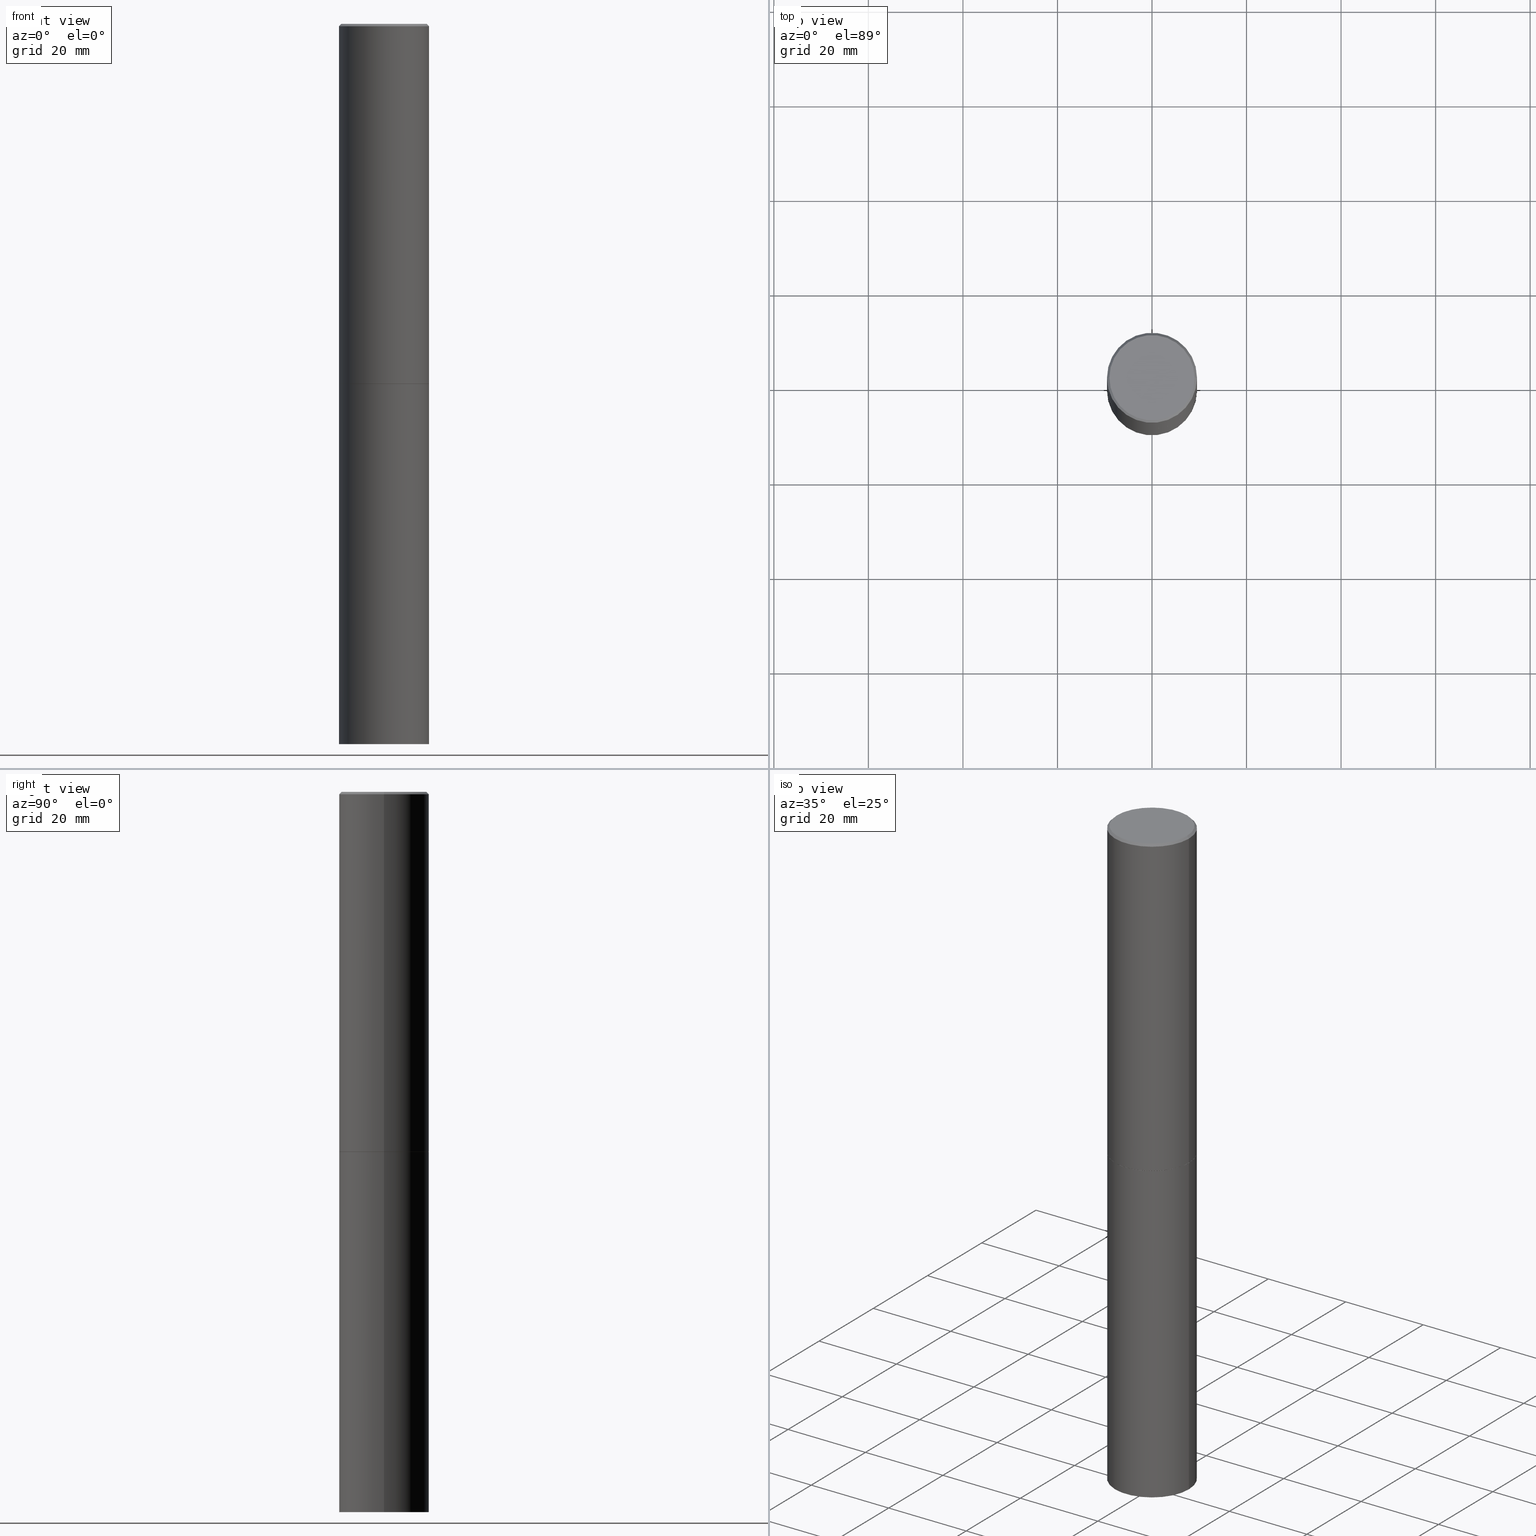
[diagram: canonical four-view strip — front | top / right | iso, engineering-drawing reading convention]
A machine part, canonical four-view strip (front | top / right | iso — engineering-drawing reading convention). The complete STEP part file that produces these views, byte-faithful:
ISO-10303-21;
HEADER;
FILE_DESCRIPTION (( 'STEP AP203' ),
    '1' );
FILE_NAME ('31956.STEP',
    '2024-02-27T14:23:42',
    ( '' ),
    ( '' ),
    'SwSTEP 2.0',
    'SolidWorks 2023',
    '' );
FILE_SCHEMA (( 'CONFIG_CONTROL_DESIGN' ));
ENDSEC;

DATA;
#1 = ORIENTED_EDGE ( 'NONE', *, *, #360, .T. ) ;
#2 = PRODUCT_DEFINITION_FORMATION_WITH_SPECIFIED_SOURCE ( 'ANY', '', #34, .NOT_KNOWN. ) ;
#3 = CC_DESIGN_APPROVAL ( #133, ( #362 ) ) ;
#4 = APPROVAL_ROLE ( '' ) ;
#5 = EDGE_LOOP ( 'NONE', ( #209, #112, #218, #188 ) ) ;
#6 = LINE ( 'NONE', #199, #73 ) ;
#7 = VERTEX_POINT ( 'NONE', #70 ) ;
#8 = VECTOR ( 'NONE', #314, 39.37007874015748143 ) ;
#9 = DIRECTION ( 'NONE',  ( -2.445468806185136597E-29, 3.491481338843145583E-15, 1.000000000000000000 ) ) ;
#10 = DIRECTION ( 'NONE',  ( 0.000000000000000000, 0.000000000000000000, 1.000000000000000000 ) ) ;
#11 = DIRECTION ( 'NONE',  ( -2.438088387897960049E-29, 3.491481338843145188E-15, 1.000000000000000000 ) ) ;
#12 = CARTESIAN_POINT ( 'NONE',  ( 4.890937612370294178E-31, -6.982962677686321191E-17, -0.02000000000000008715 ) ) ;
#13 = CARTESIAN_POINT ( 'NONE',  ( 7.336406418555409790E-29, -1.047444401652943635E-14, -3.000000000000000444 ) ) ;
#14 = DIRECTION ( 'NONE',  ( -1.000000000000000000, 6.982962677686265922E-15, -4.876176775795935793E-29 ) ) ;
#15 = DIRECTION ( 'NONE',  ( -2.445468806185136597E-29, 3.491481338843145583E-15, 1.000000000000000000 ) ) ;
#16 = CARTESIAN_POINT ( 'NONE',  ( 2.618611004132423381E-15, 0.3749999999999895639, -3.000000000000000888 ) ) ;
#17 = AXIS2_PLACEMENT_3D ( 'NONE', #151, #266, #178 ) ;
#18 = CONICAL_SURFACE ( 'NONE', #231, 0.3749999999999996669, 0.7853981633974457255 ) ;
#19 = EDGE_CURVE ( 'NONE', #366, #30, #25, .T. ) ;
#20 = CARTESIAN_POINT ( 'NONE',  ( 0.3750000000000000555, -2.356749903719122272E-14, -6.000000000000000888 ) ) ;
#21 = LINE ( 'NONE', #85, #26 ) ;
#22 = ORIENTED_EDGE ( 'NONE', *, *, #360, .F. ) ;
#23 = CARTESIAN_POINT ( 'NONE',  ( 7.336406418555409790E-29, -1.047444401652943635E-14, -3.000000000000000444 ) ) ;
#24 = SECURITY_CLASSIFICATION_LEVEL ( 'unclassified' ) ;
#25 = CIRCLE ( 'NONE', #60, 0.3750000000000000555 ) ;
#26 = VECTOR ( 'NONE', #306, 39.37007874015748143 ) ;
#27 = ORIENTED_EDGE ( 'NONE', *, *, #292, .F. ) ;
#28 = CC_DESIGN_APPROVAL ( #300, ( #2 ) ) ;
#29 = ADVANCED_FACE ( 'NONE', ( #291 ), #208, .F. ) ;
#30 = VERTEX_POINT ( 'NONE', #39 ) ;
#31 = CARTESIAN_POINT ( 'NONE',  ( 7.333960949749226429E-29, -1.047095253519059492E-14, -2.999000000000000554 ) ) ;
#32 = ORIENTED_EDGE ( 'NONE', *, *, #241, .T. ) ;
#33 = AXIS2_PLACEMENT_3D ( 'NONE', #31, #221, #186 ) ;
#34 = PRODUCT ( '31956', '31956', '', ( #256 ) ) ;
#35 = ORIENTED_EDGE ( 'NONE', *, *, #174, .F. ) ;
#36 = EDGE_LOOP ( 'NONE', ( #35, #54, #330, #347 ) ) ;
#37 = ORIENTED_EDGE ( 'NONE', *, *, #292, .T. ) ;
#38 = AXIS2_PLACEMENT_3D ( 'NONE', #43, #15, #131 ) ;
#39 = CARTESIAN_POINT ( 'NONE',  ( -0.3750000000000000555, -1.304713076569377962E-14, -6.000000000000000888 ) ) ;
#40 = EDGE_CURVE ( 'NONE', #220, #56, #6, .T. ) ;
#41 = EDGE_LOOP ( 'NONE', ( #340, #61, #58, #196 ) ) ;
#42 = AXIS2_PLACEMENT_3D ( 'NONE', #260, #94, #171 ) ;
#43 = CARTESIAN_POINT ( 'NONE',  ( 7.336406418555409790E-29, -1.047444401652943635E-14, -3.000000000000000444 ) ) ;
#44 = CARTESIAN_POINT ( 'NONE',  ( 7.336406418555409790E-29, -1.047444401652943635E-14, -3.000000000000000444 ) ) ;
#45 = MANIFOLD_SOLID_BREP ( 'Body-Move/Copy2[1]', #108 ) ;
#46 = DIRECTION ( 'NONE',  ( 1.000000000000000000, -6.982962677686265922E-15, 4.876176775795935793E-29 ) ) ;
#47 = CARTESIAN_POINT ( 'NONE',  ( 0.3749999999999998335, -2.618611004132348439E-15, 1.828566290923475082E-29 ) ) ;
#48 = AXIS2_PLACEMENT_3D ( 'NONE', #52, #113, #136 ) ;
#49 = ADVANCED_BREP_SHAPE_REPRESENTATION ( '31956', ( #45, #168, #296 ), #128 ) ;
#50 = ADVANCED_FACE ( 'NONE', ( #294 ), #295, .T. ) ;
#51 = APPROVAL_STATUS ( 'not_yet_approved' ) ;
#52 = CARTESIAN_POINT ( 'NONE',  ( 0.000000000000000000, 0.000000000000000000, 0.000000000000000000 ) ) ;
#53 = PERSON_AND_ORGANIZATION ( #190, #169 ) ;
#54 = ORIENTED_EDGE ( 'NONE', *, *, #328, .T. ) ;
#55 = CIRCLE ( 'NONE', #264, 0.3750000000000000555 ) ;
#56 = VERTEX_POINT ( 'NONE', #124 ) ;
#57 = CARTESIAN_POINT ( 'NONE',  ( 7.333960949749226429E-29, -1.047095253519059492E-14, -2.999000000000000554 ) ) ;
#58 = ORIENTED_EDGE ( 'NONE', *, *, #312, .F. ) ;
#59 =( NAMED_UNIT ( * ) SI_UNIT ( $, .STERADIAN. ) SOLID_ANGLE_UNIT ( ) );
#60 = AXIS2_PLACEMENT_3D ( 'NONE', #332, #204, #66 ) ;
#61 = ORIENTED_EDGE ( 'NONE', *, *, #174, .T. ) ;
#62 = ADVANCED_FACE ( 'NONE', ( #299 ), #236, .T. ) ;
#63 = DIRECTION ( 'NONE',  ( 1.000000000000000000, -6.982962677686266711E-15, 0.000000000000000000 ) ) ;
#64 = UNCERTAINTY_MEASURE_WITH_UNIT (LENGTH_MEASURE( 1.000000000000000082E-05 ), #344, 'distance_accuracy_value', 'NONE');
#65 = DIRECTION ( 'NONE',  ( -1.000000000000000000, 6.982962677686265922E-15, -4.876176775795935793E-29 ) ) ;
#66 = DIRECTION ( 'NONE',  ( 1.000000000000000000, -6.982962677686261189E-15, 0.000000000000000000 ) ) ;
#67 = DIRECTION ( 'NONE',  ( -0.7071067811865456854, 2.468850131082237733E-15, -0.7071067811865493491 ) ) ;
#68 = AXIS2_PLACEMENT_3D ( 'NONE', #44, #69, #150 ) ;
#69 = DIRECTION ( 'NONE',  ( -2.445468806185136597E-29, 3.491481338843145583E-15, 1.000000000000000000 ) ) ;
#70 = CARTESIAN_POINT ( 'NONE',  ( -0.3750000000000000555, -1.304713076569377962E-14, -3.000000000000000444 ) ) ;
#71 = DIRECTION ( 'NONE',  ( -1.000000000000000000, 6.982962677686266711E-15, 0.000000000000000000 ) ) ;
#72 = CYLINDRICAL_SURFACE ( 'NONE', #327, 0.3750000000000000555 ) ;
#73 = VECTOR ( 'NONE', #144, 39.37007874015748143 ) ;
#74 = CIRCLE ( 'NONE', #33, 0.3750000000000000555 ) ;
#75 = APPROVAL_PERSON_ORGANIZATION ( #237, #133, #205 ) ;
#76 = LINE ( 'NONE', #104, #356 ) ;
#77 = PRODUCT_DEFINITION ( 'UNKNOWN', '', #2, #229 ) ;
#78 = DIRECTION ( 'NONE',  ( 1.000000000000000000, -6.982962677686265922E-15, 4.876231632511992107E-29 ) ) ;
#79 = CARTESIAN_POINT ( 'NONE',  ( -2.087702828670439639E-46, 2.980686340760894400E-32, 8.537024980200822558E-18 ) ) ;
#80 = EDGE_CURVE ( 'NONE', #317, #7, #225, .T. ) ;
#81 = DIRECTION ( 'NONE',  ( -0.7071067811866199593, 7.493145998870616062E-15, 0.7071067811864750752 ) ) ;
#82 = DIRECTION ( 'NONE',  ( -2.445468806185136877E-29, 3.491481338843145188E-15, 1.000000000000000000 ) ) ;
#83 = CONICAL_SURFACE ( 'NONE', #258, 0.3749999999999996669, 0.7853981633974457255 ) ;
#84 = ORIENTED_EDGE ( 'NONE', *, *, #304, .T. ) ;
#85 = CARTESIAN_POINT ( 'NONE',  ( 0.3749999999999996669, -2.642516375941185662E-15, -0.02000000000000008715 ) ) ;
#86 = ORIENTED_EDGE ( 'NONE', *, *, #302, .T. ) ;
#87 = CARTESIAN_POINT ( 'NONE',  ( 4.890937612370294178E-31, -6.982962677686321191E-17, -0.02000000000000008715 ) ) ;
#88 = PERSON_AND_ORGANIZATION ( #190, #169 ) ;
#89 = ORIENTED_EDGE ( 'NONE', *, *, #241, .F. ) ;
#90 = ORIENTED_EDGE ( 'NONE', *, *, #80, .T. ) ;
#91 = LENGTH_MEASURE_WITH_UNIT ( LENGTH_MEASURE( 0.02539999999999999897 ), #277 );
#92 = PERSON_AND_ORGANIZATION_ROLE ( 'creator' ) ;
#93 = EDGE_LOOP ( 'NONE', ( #293, #173 ) ) ;
#94 = DIRECTION ( 'NONE',  ( -2.445468806185136597E-29, 3.491481338843145583E-15, 1.000000000000000000 ) ) ;
#95 = EDGE_LOOP ( 'NONE', ( #239, #114, #177, #254 ) ) ;
#96 = DIRECTION ( 'NONE',  ( -2.445468806185136597E-29, 3.491481338843145583E-15, 1.000000000000000000 ) ) ;
#97 = VERTEX_POINT ( 'NONE', #235 ) ;
#98 = CIRCLE ( 'NONE', #207, 0.3749999999999996669 ) ;
#99 = CARTESIAN_POINT ( 'NONE',  ( 0.3750000000000000555, -2.618611004132350016E-15, 1.828566290923476203E-29 ) ) ;
#100 = DIRECTION ( 'NONE',  ( 1.000000000000000000, -6.982962677686265922E-15, 4.876176775795935793E-29 ) ) ;
#101 = CIRCLE ( 'NONE', #289, 0.3750000000000000555 ) ;
#102 = DIRECTION ( 'NONE',  ( -2.445468806185136597E-29, 3.491481338843145583E-15, 1.000000000000000000 ) ) ;
#103 = APPROVAL ( #259, 'UNSPECIFIED' ) ;
#104 = CARTESIAN_POINT ( 'NONE',  ( -0.3750000000000000555, 2.664535259100376091E-15, -1.844600658845589598E-29 ) ) ;
#105 = PRODUCT_DEFINITION_SHAPE ( 'NONE', 'NONE',  #77 ) ;
#106 = EDGE_CURVE ( 'NONE', #97, #228, #232, .T. ) ;
#107 = LINE ( 'NONE', #110, #8 ) ;
#108 = CLOSED_SHELL ( 'NONE', ( #62, #285, #179, #155 ) ) ;
#109 = AXIS2_PLACEMENT_3D ( 'NONE', #305, #301, #100 ) ;
#110 = CARTESIAN_POINT ( 'NONE',  ( -0.3749999999999998335, 2.664535259100374514E-15, -1.844600658845588757E-29 ) ) ;
#111 = CALENDAR_DATE ( 2024, 27, 2 ) ;
#112 = ORIENTED_EDGE ( 'NONE', *, *, #341, .T. ) ;
#113 = DIRECTION ( 'NONE',  ( -2.445468806185136597E-29, 3.491481338843145583E-15, 1.000000000000000000 ) ) ;
#114 = ORIENTED_EDGE ( 'NONE', *, *, #193, .T. ) ;
#115 = AXIS2_PLACEMENT_3D ( 'NONE', #268, #354, #233 ) ;
#116 = VECTOR ( 'NONE', #348, 39.37007874015748143 ) ;
#117 = PRODUCT_RELATED_PRODUCT_CATEGORY ( 'detail', '', ( #34 ) ) ;
#118 = ORIENTED_EDGE ( 'NONE', *, *, #119, .T. ) ;
#119 = EDGE_CURVE ( 'NONE', #366, #317, #127, .T. ) ;
#120 = VERTEX_POINT ( 'NONE', #170 ) ;
#121 = ORIENTED_EDGE ( 'NONE', *, *, #234, .T. ) ;
#122 = CARTESIAN_POINT ( 'NONE',  ( -0.3749999999999996669, 2.548781377355484352E-15, -0.02000000000000008715 ) ) ;
#123 = DIRECTION ( 'NONE',  ( 1.000000000000000000, -6.982962677686266711E-15, 0.000000000000000000 ) ) ;
#124 = CARTESIAN_POINT ( 'NONE',  ( 0.3750000000000000555, -1.308956353932294494E-14, -2.999000000000000554 ) ) ;
#125 = DIRECTION ( 'NONE',  ( 2.445468806185136597E-29, -3.491481338843145583E-15, -1.000000000000000000 ) ) ;
#126 = EDGE_CURVE ( 'NONE', #30, #366, #303, .T. ) ;
#127 = LINE ( 'NONE', #99, #116 ) ;
#128 =( GEOMETRIC_REPRESENTATION_CONTEXT ( 3 ) GLOBAL_UNCERTAINTY_ASSIGNED_CONTEXT ( ( #64 ) ) GLOBAL_UNIT_ASSIGNED_CONTEXT ( ( #344, #195, #59 ) ) REPRESENTATION_CONTEXT ( 'NONE', 'WORKASPACE' ) );
#129 = FACE_OUTER_BOUND ( 'NONE', #311, .T. ) ;
#130 = FACE_OUTER_BOUND ( 'NONE', #41, .T. ) ;
#131 = DIRECTION ( 'NONE',  ( 1.000000000000000000, -6.982962677686265133E-15, 0.000000000000000000 ) ) ;
#132 = CC_DESIGN_PERSON_AND_ORGANIZATION_ASSIGNMENT ( #53, #163, ( #2 ) ) ;
#133 = APPROVAL ( #322, 'UNSPECIFIED' ) ;
#134 = ADVANCED_FACE ( 'NONE', ( #201 ), #145, .F. ) ;
#135 = AXIS2_PLACEMENT_3D ( 'NONE', #230, #96, #63 ) ;
#136 = DIRECTION ( 'NONE',  ( 1.000000000000000000, -6.982962677686265922E-15, 4.876176775795935793E-29 ) ) ;
#137 = COORDINATED_UNIVERSAL_TIME_OFFSET ( 5, 0, .BEHIND. ) ;
#138 = DIRECTION ( 'NONE',  ( 2.438088387897960049E-29, -3.491481338843145188E-15, -1.000000000000000000 ) ) ;
#139 = PERSON_AND_ORGANIZATION ( #190, #169 ) ;
#140 = VERTEX_POINT ( 'NONE', #358 ) ;
#141 = ORIENTED_EDGE ( 'NONE', *, *, #193, .F. ) ;
#142 = AXIS2_PLACEMENT_3D ( 'NONE', #79, #252, #245 ) ;
#143 = EDGE_LOOP ( 'NONE', ( #164, #27, #313, #121 ) ) ;
#144 = DIRECTION ( 'NONE',  ( 0.7071067811866199593, -2.468850131083015945E-15, 0.7071067811864750752 ) ) ;
#145 = PLANE ( 'NONE',  #197 ) ;
#146 = CALENDAR_DATE ( 2024, 27, 2 ) ;
#147 = ORIENTED_EDGE ( 'NONE', *, *, #234, .F. ) ;
#148 = ORIENTED_EDGE ( 'NONE', *, *, #341, .F. ) ;
#149 = ADVANCED_FACE ( 'NONE', ( #180 ), #273, .T. ) ;
#150 = DIRECTION ( 'NONE',  ( 1.000000000000000000, -6.982962677686265133E-15, 0.000000000000000000 ) ) ;
#151 = CARTESIAN_POINT ( 'NONE',  ( 7.336406418555409790E-29, -1.047444401652943635E-14, -3.000000000000000444 ) ) ;
#152 = DIRECTION ( 'NONE',  ( -2.445468806185136597E-29, 3.491481338843145583E-15, 1.000000000000000000 ) ) ;
#153 = CARTESIAN_POINT ( 'NONE',  ( -0.3739999999999999991, -7.817014184786662453E-15, -3.000000000000000444 ) ) ;
#154 = LINE ( 'NONE', #153, #238 ) ;
#155 = ADVANCED_FACE ( 'NONE', ( #222 ), #72, .T. ) ;
#156 = CARTESIAN_POINT ( 'NONE',  ( -0.3749999999999999445, -2.605855821883350653E-15, -2.999000000000000554 ) ) ;
#157 = LOCAL_TIME ( 9, 23, 42.00000000000000000, #309 ) ;
#158 = LOCAL_TIME ( 9, 23, 42.00000000000000000, #137 ) ;
#159 = FACE_OUTER_BOUND ( 'NONE', #255, .T. ) ;
#160 = DIMENSIONAL_EXPONENTS ( 1.000000000000000000, 0.000000000000000000, 0.000000000000000000, 0.000000000000000000, 0.000000000000000000, 0.000000000000000000, 0.000000000000000000 ) ;
#161 = APPROVAL_DATE_TIME ( #365, #103 ) ;
#162 = CARTESIAN_POINT ( 'NONE',  ( 2.618611004132496745E-15, 0.3749999999999790723, -6.000000000000001776 ) ) ;
#163 = PERSON_AND_ORGANIZATION_ROLE ( 'design_supplier' ) ;
#164 = ORIENTED_EDGE ( 'NONE', *, *, #304, .F. ) ;
#165 = AXIS2_PLACEMENT_3D ( 'NONE', #23, #248, #244 ) ;
#166 = ORIENTED_EDGE ( 'NONE', *, *, #106, .T. ) ;
#167 = DIRECTION ( 'NONE',  ( 1.000000000000000000, -6.982962677686266711E-15, 0.000000000000000000 ) ) ;
#168 = MANIFOLD_SOLID_BREP ( 'Body-Move/Copy2[2]', #288 ) ;
#169 = ORGANIZATION ( 'UNSPECIFIED', 'UNSPECIFIED', '' ) ;
#170 = CARTESIAN_POINT ( 'NONE',  ( 0.3549999999999997047, -2.538996582575039076E-15, 8.537024980218368550E-18 ) ) ;
#171 = DIRECTION ( 'NONE',  ( 1.000000000000000000, -6.982962677686261189E-15, 0.000000000000000000 ) ) ;
#172 = APPROVAL_DATE_TIME ( #355, #133 ) ;
#173 = ORIENTED_EDGE ( 'NONE', *, *, #328, .F. ) ;
#174 = EDGE_CURVE ( 'NONE', #262, #346, #154, .T. ) ;
#175 = APPLICATION_CONTEXT ( 'configuration controlled 3d designs of mechanical parts and assemblies' ) ;
#176 = LOCAL_TIME ( 9, 23, 42.00000000000000000, #282 ) ;
#177 = ORIENTED_EDGE ( 'NONE', *, *, #80, .F. ) ;
#178 = DIRECTION ( 'NONE',  ( 1.000000000000000000, -6.982962677686265133E-15, 0.000000000000000000 ) ) ;
#179 = ADVANCED_FACE ( 'NONE', ( #129 ), #335, .F. ) ;
#180 = FACE_OUTER_BOUND ( 'NONE', #283, .T. ) ;
#181 = VECTOR ( 'NONE', #82, 39.37007874015748143 ) ;
#182 = CC_DESIGN_PERSON_AND_ORGANIZATION_ASSIGNMENT ( #187, #310, ( #2 ) ) ;
#183 = DIRECTION ( 'NONE',  ( 1.000000000000000000, -6.982962677686266711E-15, 0.000000000000000000 ) ) ;
#184 = DIRECTION ( 'NONE',  ( -1.000000000000000000, 6.982962677686265922E-15, -4.876176775795935793E-29 ) ) ;
#185 = CC_DESIGN_DATE_AND_TIME_ASSIGNMENT ( #200, #318, ( #362 ) ) ;
#186 = DIRECTION ( 'NONE',  ( 1.000000000000000000, -6.982962677686266711E-15, 0.000000000000000000 ) ) ;
#187 = PERSON_AND_ORGANIZATION ( #190, #169 ) ;
#188 = ORIENTED_EDGE ( 'NONE', *, *, #302, .F. ) ;
#189 = DIRECTION ( 'NONE',  ( -2.445468806185136597E-29, 3.491481338843145583E-15, 1.000000000000000000 ) ) ;
#190 = PERSON ( 'UNSPECIFIED', 'UNSPECIFIED', 'UNSPECIFIED', ('UNSPECIFIED'), ('UNSPECIFIED'), ('UNSPECIFIED') ) ;
#191 = DIRECTION ( 'NONE',  ( 2.445468806185136597E-29, -3.491481338843145583E-15, -1.000000000000000000 ) ) ;
#192 = AXIS2_PLACEMENT_3D ( 'NONE', #16, #270, #14 ) ;
#193 = EDGE_CURVE ( 'NONE', #30, #7, #76, .T. ) ;
#194 = PERSON_AND_ORGANIZATION ( #190, #169 ) ;
#195 =( NAMED_UNIT ( * ) PLANE_ANGLE_UNIT ( ) SI_UNIT ( $, .RADIAN. ) );
#196 = ORIENTED_EDGE ( 'NONE', *, *, #40, .F. ) ;
#197 = AXIS2_PLACEMENT_3D ( 'NONE', #351, #323, #65 ) ;
#198 = LOCAL_TIME ( 9, 23, 42.00000000000000000, #326 ) ;
#199 = CARTESIAN_POINT ( 'NONE',  ( 0.3739999999999999991, -1.308607205798410036E-14, -3.000000000000000444 ) ) ;
#200 = DATE_AND_TIME ( #111, #290 ) ;
#201 = FACE_OUTER_BOUND ( 'NONE', #361, .T. ) ;
#202 = CC_DESIGN_PERSON_AND_ORGANIZATION_ASSIGNMENT ( #139, #250, ( #362 ) ) ;
#203 = CARTESIAN_POINT ( 'NONE',  ( 0.000000000000000000, 0.000000000000000000, 0.000000000000000000 ) ) ;
#204 = DIRECTION ( 'NONE',  ( -2.445468806185136597E-29, 3.491481338843145583E-15, 1.000000000000000000 ) ) ;
#205 = APPROVAL_ROLE ( '' ) ;
#206 = DIRECTION ( 'NONE',  ( 1.000000000000000000, 0.000000000000000000, 0.000000000000000000 ) ) ;
#207 = AXIS2_PLACEMENT_3D ( 'NONE', #211, #102, #183 ) ;
#208 = PLANE ( 'NONE',  #319 ) ;
#209 = ORIENTED_EDGE ( 'NONE', *, *, #312, .T. ) ;
#210 = DIRECTION ( 'NONE',  ( -2.445468806185136877E-29, 3.491481338843145188E-15, 1.000000000000000000 ) ) ;
#211 = CARTESIAN_POINT ( 'NONE',  ( 4.890937612370294178E-31, -6.982962677686321191E-17, -0.02000000000000008715 ) ) ;
#212 = EDGE_CURVE ( 'NONE', #220, #262, #320, .T. ) ;
#213 = CARTESIAN_POINT ( 'NONE',  ( -2.087702828670439639E-46, 2.980686340760894400E-32, 8.537024980200822558E-18 ) ) ;
#214 = APPLICATION_PROTOCOL_DEFINITION ( 'international standard', 'config_control_design', 1994, #175 ) ;
#215 = PLANE ( 'NONE',  #334 ) ;
#216 = VECTOR ( 'NONE', #67, 39.37007874015748143 ) ;
#217 = CALENDAR_DATE ( 2024, 27, 2 ) ;
#218 = ORIENTED_EDGE ( 'NONE', *, *, #106, .F. ) ;
#219 = FACE_OUTER_BOUND ( 'NONE', #143, .T. ) ;
#220 = VERTEX_POINT ( 'NONE', #240 ) ;
#221 = DIRECTION ( 'NONE',  ( -2.445468806185136597E-29, 3.491481338843145583E-15, 1.000000000000000000 ) ) ;
#222 = FACE_OUTER_BOUND ( 'NONE', #224, .T. ) ;
#223 = DATE_AND_TIME ( #217, #157 ) ;
#224 = EDGE_LOOP ( 'NONE', ( #141, #279, #118, #22 ) ) ;
#225 = CIRCLE ( 'NONE', #325, 0.3750000000000000555 ) ;
#226 = CC_DESIGN_PERSON_AND_ORGANIZATION_ASSIGNMENT ( #329, #243, ( #34 ) ) ;
#227 = PERSON_AND_ORGANIZATION ( #190, #169 ) ;
#228 = VERTEX_POINT ( 'NONE', #359 ) ;
#229 = DESIGN_CONTEXT ( 'detailed design', #175, 'design' ) ;
#230 = CARTESIAN_POINT ( 'NONE',  ( 4.890937612370294178E-31, -6.982962677686321191E-17, -0.02000000000000008715 ) ) ;
#231 = AXIS2_PLACEMENT_3D ( 'NONE', #12, #125, #71 ) ;
#232 = CIRCLE ( 'NONE', #135, 0.3749999999999996669 ) ;
#233 = DIRECTION ( 'NONE',  ( 1.000000000000000000, -6.982962677686265922E-15, 4.876176775795935793E-29 ) ) ;
#234 = EDGE_CURVE ( 'NONE', #228, #97, #98, .T. ) ;
#235 = CARTESIAN_POINT ( 'NONE',  ( 0.3749999999999996669, -2.642516375941185662E-15, -0.02000000000000008715 ) ) ;
#236 = CYLINDRICAL_SURFACE ( 'NONE', #115, 0.3750000000000000555 ) ;
#237 = PERSON_AND_ORGANIZATION ( #190, #169 ) ;
#238 = VECTOR ( 'NONE', #81, 39.37007874015748143 ) ;
#239 = ORIENTED_EDGE ( 'NONE', *, *, #19, .T. ) ;
#240 = CARTESIAN_POINT ( 'NONE',  ( 0.3739999999999999991, -1.308607205798410036E-14, -3.000000000000000444 ) ) ;
#241 = EDGE_CURVE ( 'NONE', #120, #140, #307, .T. ) ;
#242 = CARTESIAN_POINT ( 'NONE',  ( 0.3750000000000000555, -1.309305502066178795E-14, -3.000000000000000444 ) ) ;
#243 = PERSON_AND_ORGANIZATION_ROLE ( 'design_owner' ) ;
#244 = DIRECTION ( 'NONE',  ( 1.000000000000000000, -6.982962677686265133E-15, 0.000000000000000000 ) ) ;
#245 = DIRECTION ( 'NONE',  ( 1.000000000000000000, -6.982962677686265922E-15, 4.876231632511992107E-29 ) ) ;
#246 = EDGE_CURVE ( 'NONE', #140, #228, #331, .T. ) ;
#247 = CALENDAR_DATE ( 2024, 27, 2 ) ;
#248 = DIRECTION ( 'NONE',  ( -2.445468806185136597E-29, 3.491481338843145583E-15, 1.000000000000000000 ) ) ;
#249 = CONICAL_SURFACE ( 'NONE', #68, 0.3739999999999999991, 0.7853981633975507526 ) ;
#250 = PERSON_AND_ORGANIZATION_ROLE ( 'classification_officer' ) ;
#251 = CC_DESIGN_DATE_AND_TIME_ASSIGNMENT ( #223, #343, ( #77 ) ) ;
#252 = DIRECTION ( 'NONE',  ( -2.445468806185136597E-29, 3.491481338843145583E-15, 1.000000000000000000 ) ) ;
#253 = CALENDAR_DATE ( 2024, 27, 2 ) ;
#254 = ORIENTED_EDGE ( 'NONE', *, *, #119, .F. ) ;
#255 = EDGE_LOOP ( 'NONE', ( #352, #298 ) ) ;
#256 = MECHANICAL_CONTEXT ( 'NONE', #308, 'mechanical' ) ;
#257 = ADVANCED_FACE ( 'NONE', ( #130 ), #249, .T. ) ;
#258 = AXIS2_PLACEMENT_3D ( 'NONE', #87, #191, #363 ) ;
#259 = APPROVAL_STATUS ( 'not_yet_approved' ) ;
#260 = CARTESIAN_POINT ( 'NONE',  ( 1.467281283711081958E-28, -2.094888803305887271E-14, -6.000000000000000888 ) ) ;
#261 = ADVANCED_FACE ( 'NONE', ( #267 ), #18, .T. ) ;
#262 = VERTEX_POINT ( 'NONE', #281 ) ;
#263 = SHAPE_DEFINITION_REPRESENTATION ( #105, #49 ) ;
#264 = AXIS2_PLACEMENT_3D ( 'NONE', #57, #276, #167 ) ;
#265 = CARTESIAN_POINT ( 'NONE',  ( 7.336406418555408669E-29, -1.047444401652943478E-14, -2.999999999999999556 ) ) ;
#266 = DIRECTION ( 'NONE',  ( -2.445468806185136597E-29, 3.491481338843145583E-15, 1.000000000000000000 ) ) ;
#267 = FACE_OUTER_BOUND ( 'NONE', #287, .T. ) ;
#268 = CARTESIAN_POINT ( 'NONE',  ( 0.000000000000000000, 0.000000000000000000, 0.000000000000000000 ) ) ;
#269 = CIRCLE ( 'NONE', #165, 0.3739999999999999991 ) ;
#270 = DIRECTION ( 'NONE',  ( 2.438088387897960049E-29, -3.491481338843145188E-15, -1.000000000000000000 ) ) ;
#271 = ADVANCED_FACE ( 'NONE', ( #280 ), #337, .T. ) ;
#272 = CARTESIAN_POINT ( 'NONE',  ( 0.000000000000000000, 0.000000000000000000, 0.000000000000000000 ) ) ;
#273 = CYLINDRICAL_SURFACE ( 'NONE', #109, 0.3749999999999998335 ) ;
#274 = CC_DESIGN_APPROVAL ( #103, ( #77 ) ) ;
#275 = APPROVAL_PERSON_ORGANIZATION ( #88, #300, #278 ) ;
#276 = DIRECTION ( 'NONE',  ( -2.445468806185136597E-29, 3.491481338843145583E-15, 1.000000000000000000 ) ) ;
#277 =( LENGTH_UNIT ( ) NAMED_UNIT ( * ) SI_UNIT ( $, .METRE. ) );
#278 = APPROVAL_ROLE ( '' ) ;
#279 = ORIENTED_EDGE ( 'NONE', *, *, #126, .T. ) ;
#280 = FACE_OUTER_BOUND ( 'NONE', #5, .T. ) ;
#281 = CARTESIAN_POINT ( 'NONE',  ( -0.3739999999999999991, -7.811715730438441629E-15, -3.000000000000000444 ) ) ;
#282 = COORDINATED_UNIVERSAL_TIME_OFFSET ( 5, 0, .BEHIND. ) ;
#283 = EDGE_LOOP ( 'NONE', ( #148, #324, #86, #147 ) ) ;
#284 = DIRECTION ( 'NONE',  ( 1.000000000000000000, -6.982962677686266711E-15, 0.000000000000000000 ) ) ;
#285 = ADVANCED_FACE ( 'NONE', ( #159 ), #215, .T. ) ;
#286 = APPLICATION_PROTOCOL_DEFINITION ( 'international standard', 'config_control_design', 1994, #308 ) ;
#287 = EDGE_LOOP ( 'NONE', ( #89, #84, #166, #321 ) ) ;
#288 = CLOSED_SHELL ( 'NONE', ( #257, #271, #261, #333, #149, #50, #29, #134 ) ) ;
#289 = AXIS2_PLACEMENT_3D ( 'NONE', #342, #189, #284 ) ;
#290 = LOCAL_TIME ( 9, 23, 42.00000000000000000, #364 ) ;
#291 = FACE_OUTER_BOUND ( 'NONE', #93, .T. ) ;
#292 = EDGE_CURVE ( 'NONE', #140, #120, #350, .T. ) ;
#293 = ORIENTED_EDGE ( 'NONE', *, *, #212, .F. ) ;
#294 = FACE_OUTER_BOUND ( 'NONE', #36, .T. ) ;
#295 = CONICAL_SURFACE ( 'NONE', #17, 0.3739999999999999991, 0.7853981633975507526 ) ;
#296 = AXIS2_PLACEMENT_3D ( 'NONE', #203, #10, #206 ) ;
#297 = CC_DESIGN_SECURITY_CLASSIFICATION ( #362, ( #2 ) ) ;
#298 = ORIENTED_EDGE ( 'NONE', *, *, #126, .F. ) ;
#299 = FACE_OUTER_BOUND ( 'NONE', #95, .T. ) ;
#300 = APPROVAL ( #51, 'UNSPECIFIED' ) ;
#301 = DIRECTION ( 'NONE',  ( -2.445468806185136597E-29, 3.491481338843145583E-15, 1.000000000000000000 ) ) ;
#302 = EDGE_CURVE ( 'NONE', #56, #97, #338, .T. ) ;
#303 = CIRCLE ( 'NONE', #42, 0.3750000000000000555 ) ;
#304 = EDGE_CURVE ( 'NONE', #120, #97, #21, .T. ) ;
#305 = CARTESIAN_POINT ( 'NONE',  ( 0.000000000000000000, 0.000000000000000000, 0.000000000000000000 ) ) ;
#306 = DIRECTION ( 'NONE',  ( 0.7071067811865456854, -7.319954787623249734E-15, -0.7071067811865493491 ) ) ;
#307 = CIRCLE ( 'NONE', #315, 0.3549999999999997047 ) ;
#308 = APPLICATION_CONTEXT ( 'configuration controlled 3d designs of mechanical parts and assemblies' ) ;
#309 = COORDINATED_UNIVERSAL_TIME_OFFSET ( 5, 0, .BEHIND. ) ;
#310 = PERSON_AND_ORGANIZATION_ROLE ( 'creator' ) ;
#311 = EDGE_LOOP ( 'NONE', ( #90, #1 ) ) ;
#312 = EDGE_CURVE ( 'NONE', #56, #346, #74, .T. ) ;
#313 = ORIENTED_EDGE ( 'NONE', *, *, #246, .T. ) ;
#314 = DIRECTION ( 'NONE',  ( -2.445468806185136877E-29, 3.491481338843145188E-15, 1.000000000000000000 ) ) ;
#315 = AXIS2_PLACEMENT_3D ( 'NONE', #213, #336, #78 ) ;
#316 = DATE_AND_TIME ( #247, #158 ) ;
#317 = VERTEX_POINT ( 'NONE', #242 ) ;
#318 = DATE_TIME_ROLE ( 'classification_date' ) ;
#319 = AXIS2_PLACEMENT_3D ( 'NONE', #265, #11, #357 ) ;
#320 = CIRCLE ( 'NONE', #38, 0.3739999999999999991 ) ;
#321 = ORIENTED_EDGE ( 'NONE', *, *, #246, .F. ) ;
#322 = APPROVAL_STATUS ( 'not_yet_approved' ) ;
#323 = DIRECTION ( 'NONE',  ( 2.438088387897960049E-29, -3.491481338843145188E-15, -1.000000000000000000 ) ) ;
#324 = ORIENTED_EDGE ( 'NONE', *, *, #353, .T. ) ;
#325 = AXIS2_PLACEMENT_3D ( 'NONE', #13, #9, #123 ) ;
#326 = COORDINATED_UNIVERSAL_TIME_OFFSET ( 5, 0, .BEHIND. ) ;
#327 = AXIS2_PLACEMENT_3D ( 'NONE', #272, #152, #46 ) ;
#328 = EDGE_CURVE ( 'NONE', #262, #220, #269, .T. ) ;
#329 = PERSON_AND_ORGANIZATION ( #190, #169 ) ;
#330 = ORIENTED_EDGE ( 'NONE', *, *, #40, .T. ) ;
#331 = LINE ( 'NONE', #122, #216 ) ;
#332 = CARTESIAN_POINT ( 'NONE',  ( 1.467281283711081958E-28, -2.094888803305887271E-14, -6.000000000000000888 ) ) ;
#333 = ADVANCED_FACE ( 'NONE', ( #219 ), #83, .T. ) ;
#334 = AXIS2_PLACEMENT_3D ( 'NONE', #162, #138, #184 ) ;
#335 = PLANE ( 'NONE',  #192 ) ;
#336 = DIRECTION ( 'NONE',  ( -2.445468806185136597E-29, 3.491481338843145583E-15, 1.000000000000000000 ) ) ;
#337 = CYLINDRICAL_SURFACE ( 'NONE', #48, 0.3749999999999998335 ) ;
#338 = LINE ( 'NONE', #47, #181 ) ;
#339 = APPROVAL_DATE_TIME ( #316, #300 ) ;
#340 = ORIENTED_EDGE ( 'NONE', *, *, #212, .T. ) ;
#341 = EDGE_CURVE ( 'NONE', #346, #228, #107, .T. ) ;
#342 = CARTESIAN_POINT ( 'NONE',  ( 7.336406418555409790E-29, -1.047444401652943635E-14, -3.000000000000000444 ) ) ;
#343 = DATE_TIME_ROLE ( 'creation_date' ) ;
#344 =( CONVERSION_BASED_UNIT ( 'INCH', #91 ) LENGTH_UNIT ( ) NAMED_UNIT ( #160 ) );
#345 = APPROVAL_PERSON_ORGANIZATION ( #194, #103, #4 ) ;
#346 = VERTEX_POINT ( 'NONE', #156 ) ;
#347 = ORIENTED_EDGE ( 'NONE', *, *, #353, .F. ) ;
#348 = DIRECTION ( 'NONE',  ( -2.445468806185136877E-29, 3.491481338843145188E-15, 1.000000000000000000 ) ) ;
#349 = CC_DESIGN_PERSON_AND_ORGANIZATION_ASSIGNMENT ( #227, #92, ( #77 ) ) ;
#350 = CIRCLE ( 'NONE', #142, 0.3549999999999997047 ) ;
#351 = CARTESIAN_POINT ( 'NONE',  ( 2.478951750578622237E-15, 0.3549999999999997047, -1.235207362799215228E-15 ) ) ;
#352 = ORIENTED_EDGE ( 'NONE', *, *, #19, .F. ) ;
#353 = EDGE_CURVE ( 'NONE', #346, #56, #55, .T. ) ;
#354 = DIRECTION ( 'NONE',  ( -2.445468806185136597E-29, 3.491481338843145583E-15, 1.000000000000000000 ) ) ;
#355 = DATE_AND_TIME ( #146, #198 ) ;
#356 = VECTOR ( 'NONE', #210, 39.37007874015748143 ) ;
#357 = DIRECTION ( 'NONE',  ( 1.000000000000000000, -6.982962677686265922E-15, 4.876176775795935793E-29 ) ) ;
#358 = CARTESIAN_POINT ( 'NONE',  ( -0.3549999999999997047, 2.513866563967053491E-15, 8.537024980183364388E-18 ) ) ;
#359 = CARTESIAN_POINT ( 'NONE',  ( -0.3749999999999996669, 2.548781377355484352E-15, -0.02000000000000008715 ) ) ;
#360 = EDGE_CURVE ( 'NONE', #7, #317, #101, .T. ) ;
#361 = EDGE_LOOP ( 'NONE', ( #37, #32 ) ) ;
#362 = SECURITY_CLASSIFICATION ( '', '', #24 ) ;
#363 = DIRECTION ( 'NONE',  ( -1.000000000000000000, 6.982962677686266711E-15, 0.000000000000000000 ) ) ;
#364 = COORDINATED_UNIVERSAL_TIME_OFFSET ( 5, 0, .BEHIND. ) ;
#365 = DATE_AND_TIME ( #253, #176 ) ;
#366 = VERTEX_POINT ( 'NONE', #20 ) ;
ENDSEC;
END-ISO-10303-21;
